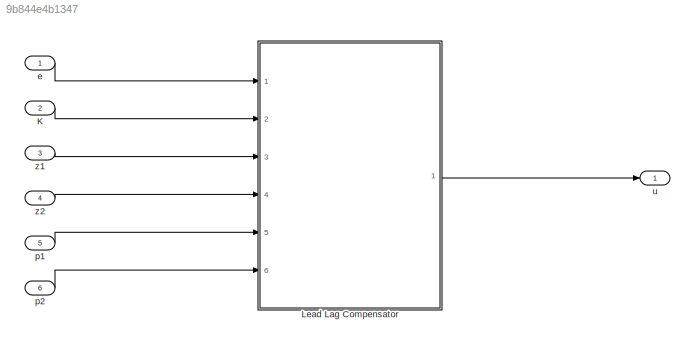
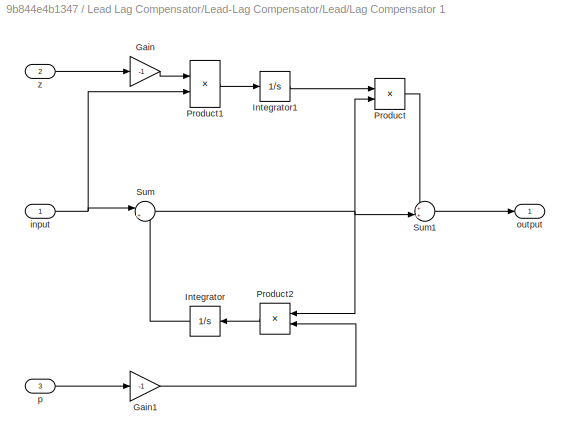
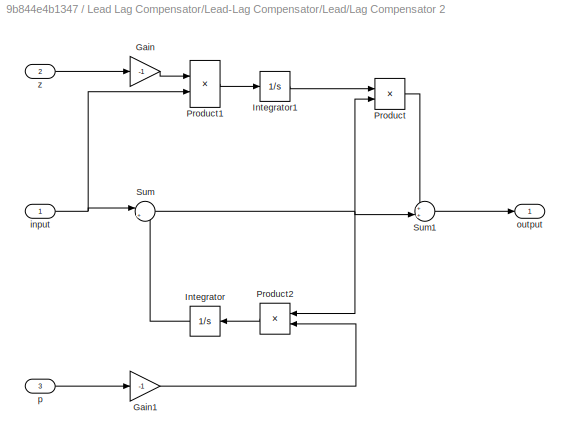
MODEL slx_9b844e4b1347
KIND model
CONFIG AbsTol = auto
CONFIG EnableMultiTasking = off
CONFIG FixedStep = auto
CONFIG MaxStep = auto
CONFIG MinStep = auto
CONFIG RelTol = 1e-3
CONFIG SampleTimeConstraint = Unconstrained
CONFIG Solver = VariableStepAuto
CONFIG SolverName = VariableStepAuto
CONFIG StartTime = 0.0
CONFIG StopTime = 10.0
BLOCK [Inport] K
  IconDisplay = Port number
  Port = 2
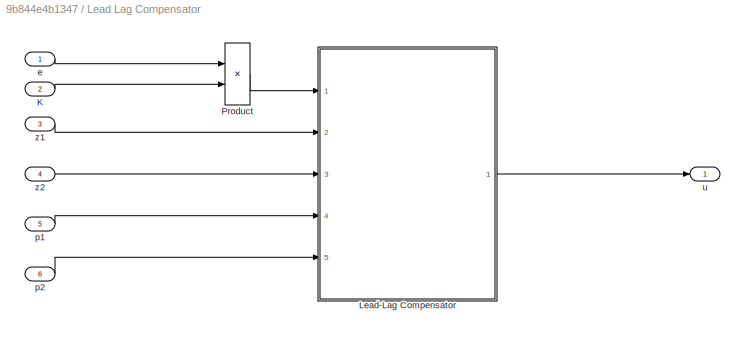
BLOCK [SubSystem] Lead Lag Compensator
  Ports = [6, 1]
  RequestExecContextInheritance = off
BLOCK [Inport] Lead Lag Compensator/K
  IconDisplay = Port number
  Port = 2
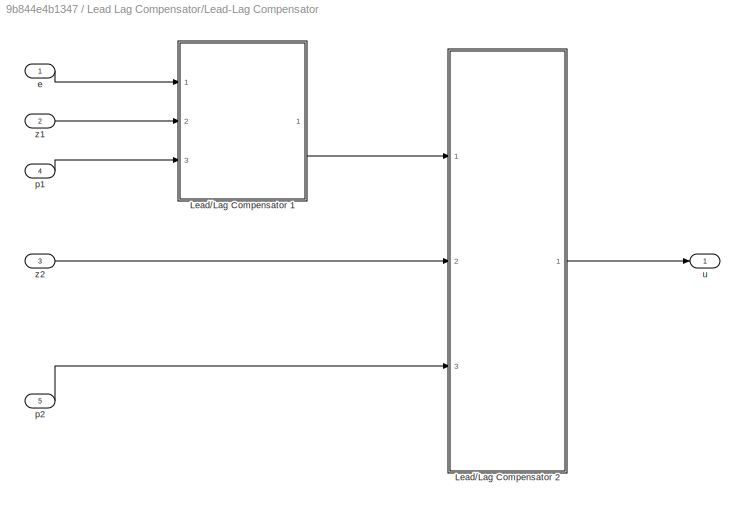
BLOCK [SubSystem] Lead Lag Compensator/Lead-Lag Compensator
  Ports = [5, 1]
  RequestExecContextInheritance = off
BLOCK [SubSystem] Lead Lag Compensator/Lead-Lag Compensator/Lead//Lag Compensator 1
  Ports = [3, 1]
  RequestExecContextInheritance = off
BLOCK [Gain] Lead Lag Compensator/Lead-Lag Compensator/Lead//Lag Compensator 1/Gain
  Gain = -1
  OutDataTypeStr = Inherit: Inherit via internal rule
  ParamDataTypeStr = Inherit: Inherit via internal rule
  SaturateOnIntegerOverflow = off
BLOCK [Gain] Lead Lag Compensator/Lead-Lag Compensator/Lead//Lag Compensator 1/Gain1
  Gain = -1
  OutDataTypeStr = Inherit: Inherit via internal rule
  ParamDataTypeStr = Inherit: Inherit via internal rule
  SaturateOnIntegerOverflow = off
BLOCK [Integrator] Lead Lag Compensator/Lead-Lag Compensator/Lead//Lag Compensator 1/Integrator
  Ports = [1, 1]
BLOCK [Integrator] Lead Lag Compensator/Lead-Lag Compensator/Lead//Lag Compensator 1/Integrator1
  Ports = [1, 1]
BLOCK [Product] Lead Lag Compensator/Lead-Lag Compensator/Lead//Lag Compensator 1/Product
  InputSameDT = off
  OutDataTypeStr = Inherit: Inherit via internal rule
  Ports = [2, 1]
  RndMeth = Floor
  SaturateOnIntegerOverflow = off
BLOCK [Product] Lead Lag Compensator/Lead-Lag Compensator/Lead//Lag Compensator 1/Product1
  InputSameDT = off
  OutDataTypeStr = Inherit: Inherit via internal rule
  Ports = [2, 1]
  RndMeth = Floor
  SaturateOnIntegerOverflow = off
BLOCK [Product] Lead Lag Compensator/Lead-Lag Compensator/Lead//Lag Compensator 1/Product2
  InputSameDT = off
  OutDataTypeStr = Inherit: Inherit via internal rule
  Ports = [2, 1]
  RndMeth = Floor
  SaturateOnIntegerOverflow = off
BLOCK [Sum] Lead Lag Compensator/Lead-Lag Compensator/Lead//Lag Compensator 1/Sum
  IconShape = round
  InputSameDT = off
  Inputs = |+-
  OutDataTypeStr = Inherit: Inherit via internal rule
  Ports = [2, 1]
  SaturateOnIntegerOverflow = off
BLOCK [Sum] Lead Lag Compensator/Lead-Lag Compensator/Lead//Lag Compensator 1/Sum1
  IconShape = round
  InputSameDT = off
  Inputs = ++|
  OutDataTypeStr = Inherit: Inherit via internal rule
  Ports = [2, 1]
  SaturateOnIntegerOverflow = off
BLOCK [Inport] Lead Lag Compensator/Lead-Lag Compensator/Lead//Lag Compensator 1/input
  IconDisplay = Port number
BLOCK [Outport] Lead Lag Compensator/Lead-Lag Compensator/Lead//Lag Compensator 1/output
  IconDisplay = Port number
BLOCK [Inport] Lead Lag Compensator/Lead-Lag Compensator/Lead//Lag Compensator 1/p
  IconDisplay = Port number
  Port = 3
BLOCK [Inport] Lead Lag Compensator/Lead-Lag Compensator/Lead//Lag Compensator 1/z
  IconDisplay = Port number
  Port = 2
BLOCK [SubSystem] Lead Lag Compensator/Lead-Lag Compensator/Lead//Lag Compensator 2
  Ports = [3, 1]
  RequestExecContextInheritance = off
BLOCK [Gain] Lead Lag Compensator/Lead-Lag Compensator/Lead//Lag Compensator 2/Gain
  Gain = -1
  OutDataTypeStr = Inherit: Inherit via internal rule
  ParamDataTypeStr = Inherit: Inherit via internal rule
  SaturateOnIntegerOverflow = off
BLOCK [Gain] Lead Lag Compensator/Lead-Lag Compensator/Lead//Lag Compensator 2/Gain1
  Gain = -1
  OutDataTypeStr = Inherit: Inherit via internal rule
  ParamDataTypeStr = Inherit: Inherit via internal rule
  SaturateOnIntegerOverflow = off
BLOCK [Integrator] Lead Lag Compensator/Lead-Lag Compensator/Lead//Lag Compensator 2/Integrator
  Ports = [1, 1]
BLOCK [Integrator] Lead Lag Compensator/Lead-Lag Compensator/Lead//Lag Compensator 2/Integrator1
  Ports = [1, 1]
BLOCK [Product] Lead Lag Compensator/Lead-Lag Compensator/Lead//Lag Compensator 2/Product
  InputSameDT = off
  OutDataTypeStr = Inherit: Inherit via internal rule
  Ports = [2, 1]
  RndMeth = Floor
  SaturateOnIntegerOverflow = off
BLOCK [Product] Lead Lag Compensator/Lead-Lag Compensator/Lead//Lag Compensator 2/Product1
  InputSameDT = off
  OutDataTypeStr = Inherit: Inherit via internal rule
  Ports = [2, 1]
  RndMeth = Floor
  SaturateOnIntegerOverflow = off
BLOCK [Product] Lead Lag Compensator/Lead-Lag Compensator/Lead//Lag Compensator 2/Product2
  InputSameDT = off
  OutDataTypeStr = Inherit: Inherit via internal rule
  Ports = [2, 1]
  RndMeth = Floor
  SaturateOnIntegerOverflow = off
BLOCK [Sum] Lead Lag Compensator/Lead-Lag Compensator/Lead//Lag Compensator 2/Sum
  IconShape = round
  InputSameDT = off
  Inputs = |+-
  OutDataTypeStr = Inherit: Inherit via internal rule
  Ports = [2, 1]
  SaturateOnIntegerOverflow = off
BLOCK [Sum] Lead Lag Compensator/Lead-Lag Compensator/Lead//Lag Compensator 2/Sum1
  IconShape = round
  InputSameDT = off
  Inputs = ++|
  OutDataTypeStr = Inherit: Inherit via internal rule
  Ports = [2, 1]
  SaturateOnIntegerOverflow = off
BLOCK [Inport] Lead Lag Compensator/Lead-Lag Compensator/Lead//Lag Compensator 2/input
  IconDisplay = Port number
BLOCK [Outport] Lead Lag Compensator/Lead-Lag Compensator/Lead//Lag Compensator 2/output
  IconDisplay = Port number
BLOCK [Inport] Lead Lag Compensator/Lead-Lag Compensator/Lead//Lag Compensator 2/p
  IconDisplay = Port number
  Port = 3
BLOCK [Inport] Lead Lag Compensator/Lead-Lag Compensator/Lead//Lag Compensator 2/z
  IconDisplay = Port number
  Port = 2
BLOCK [Inport] Lead Lag Compensator/Lead-Lag Compensator/e
  IconDisplay = Port number
BLOCK [Inport] Lead Lag Compensator/Lead-Lag Compensator/p1
  IconDisplay = Port number
  Port = 4
BLOCK [Inport] Lead Lag Compensator/Lead-Lag Compensator/p2
  IconDisplay = Port number
  Port = 5
BLOCK [Outport] Lead Lag Compensator/Lead-Lag Compensator/u
  IconDisplay = Port number
BLOCK [Inport] Lead Lag Compensator/Lead-Lag Compensator/z1
  IconDisplay = Port number
  Port = 2
BLOCK [Inport] Lead Lag Compensator/Lead-Lag Compensator/z2
  IconDisplay = Port number
  Port = 3
BLOCK [Product] Lead Lag Compensator/Product
  InputSameDT = off
  OutDataTypeStr = Inherit: Inherit via internal rule
  Ports = [2, 1]
  RndMeth = Floor
  SaturateOnIntegerOverflow = off
BLOCK [Inport] Lead Lag Compensator/e
  IconDisplay = Port number
BLOCK [Inport] Lead Lag Compensator/p1
  IconDisplay = Port number
  Port = 5
BLOCK [Inport] Lead Lag Compensator/p2
  IconDisplay = Port number
  Port = 6
BLOCK [Outport] Lead Lag Compensator/u
  IconDisplay = Port number
BLOCK [Inport] Lead Lag Compensator/z1
  IconDisplay = Port number
  Port = 3
BLOCK [Inport] Lead Lag Compensator/z2
  IconDisplay = Port number
  Port = 4
BLOCK [Inport] e
  IconDisplay = Port number
BLOCK [Inport] p1
  IconDisplay = Port number
  Port = 5
BLOCK [Inport] p2
  IconDisplay = Port number
  Port = 6
BLOCK [Outport] u
  IconDisplay = Port number
BLOCK [Inport] z1
  IconDisplay = Port number
  Port = 3
BLOCK [Inport] z2
  IconDisplay = Port number
  Port = 4
LINE K:1 -> Lead Lag Compensator:2
LINE Lead Lag Compensator/K:1 -> Lead Lag Compensator/Product:2
LINE Lead Lag Compensator/Lead-Lag Compensator/Lead//Lag Compensator 1/Gain1:1 -> Lead Lag Compensator/Lead-Lag Compensator/Lead//Lag Compensator 1/Product2:2
LINE Lead Lag Compensator/Lead-Lag Compensator/Lead//Lag Compensator 1/Gain:1 -> Lead Lag Compensator/Lead-Lag Compensator/Lead//Lag Compensator 1/Product1:1
LINE Lead Lag Compensator/Lead-Lag Compensator/Lead//Lag Compensator 1/Integrator1:1 -> Lead Lag Compensator/Lead-Lag Compensator/Lead//Lag Compensator 1/Product:1
LINE Lead Lag Compensator/Lead-Lag Compensator/Lead//Lag Compensator 1/Integrator:1 -> Lead Lag Compensator/Lead-Lag Compensator/Lead//Lag Compensator 1/Sum:2
LINE Lead Lag Compensator/Lead-Lag Compensator/Lead//Lag Compensator 1/Product1:1 -> Lead Lag Compensator/Lead-Lag Compensator/Lead//Lag Compensator 1/Integrator1:1
LINE Lead Lag Compensator/Lead-Lag Compensator/Lead//Lag Compensator 1/Product2:1 -> Lead Lag Compensator/Lead-Lag Compensator/Lead//Lag Compensator 1/Integrator:1
LINE Lead Lag Compensator/Lead-Lag Compensator/Lead//Lag Compensator 1/Product:1 -> Lead Lag Compensator/Lead-Lag Compensator/Lead//Lag Compensator 1/Sum1:1
LINE Lead Lag Compensator/Lead-Lag Compensator/Lead//Lag Compensator 1/Sum1:1 -> Lead Lag Compensator/Lead-Lag Compensator/Lead//Lag Compensator 1/output:1
NET Lead Lag Compensator/Lead-Lag Compensator/Lead//Lag Compensator 1/Sum:1 -> Lead Lag Compensator/Lead-Lag Compensator/Lead//Lag Compensator 1/Product2:1, Lead Lag Compensator/Lead-Lag Compensator/Lead//Lag Compensator 1/Product:2, Lead Lag Compensator/Lead-Lag Compensator/Lead//Lag Compensator 1/Sum1:2
NET Lead Lag Compensator/Lead-Lag Compensator/Lead//Lag Compensator 1/input:1 -> Lead Lag Compensator/Lead-Lag Compensator/Lead//Lag Compensator 1/Product1:2, Lead Lag Compensator/Lead-Lag Compensator/Lead//Lag Compensator 1/Sum:1
LINE Lead Lag Compensator/Lead-Lag Compensator/Lead//Lag Compensator 1/p:1 -> Lead Lag Compensator/Lead-Lag Compensator/Lead//Lag Compensator 1/Gain1:1
LINE Lead Lag Compensator/Lead-Lag Compensator/Lead//Lag Compensator 1/z:1 -> Lead Lag Compensator/Lead-Lag Compensator/Lead//Lag Compensator 1/Gain:1
LINE Lead Lag Compensator/Lead-Lag Compensator/Lead//Lag Compensator 1:1 -> Lead Lag Compensator/Lead-Lag Compensator/Lead//Lag Compensator 2:1
LINE Lead Lag Compensator/Lead-Lag Compensator/Lead//Lag Compensator 2/Gain1:1 -> Lead Lag Compensator/Lead-Lag Compensator/Lead//Lag Compensator 2/Product2:2
LINE Lead Lag Compensator/Lead-Lag Compensator/Lead//Lag Compensator 2/Gain:1 -> Lead Lag Compensator/Lead-Lag Compensator/Lead//Lag Compensator 2/Product1:1
LINE Lead Lag Compensator/Lead-Lag Compensator/Lead//Lag Compensator 2/Integrator1:1 -> Lead Lag Compensator/Lead-Lag Compensator/Lead//Lag Compensator 2/Product:1
LINE Lead Lag Compensator/Lead-Lag Compensator/Lead//Lag Compensator 2/Integrator:1 -> Lead Lag Compensator/Lead-Lag Compensator/Lead//Lag Compensator 2/Sum:2
LINE Lead Lag Compensator/Lead-Lag Compensator/Lead//Lag Compensator 2/Product1:1 -> Lead Lag Compensator/Lead-Lag Compensator/Lead//Lag Compensator 2/Integrator1:1
LINE Lead Lag Compensator/Lead-Lag Compensator/Lead//Lag Compensator 2/Product2:1 -> Lead Lag Compensator/Lead-Lag Compensator/Lead//Lag Compensator 2/Integrator:1
LINE Lead Lag Compensator/Lead-Lag Compensator/Lead//Lag Compensator 2/Product:1 -> Lead Lag Compensator/Lead-Lag Compensator/Lead//Lag Compensator 2/Sum1:1
LINE Lead Lag Compensator/Lead-Lag Compensator/Lead//Lag Compensator 2/Sum1:1 -> Lead Lag Compensator/Lead-Lag Compensator/Lead//Lag Compensator 2/output:1
NET Lead Lag Compensator/Lead-Lag Compensator/Lead//Lag Compensator 2/Sum:1 -> Lead Lag Compensator/Lead-Lag Compensator/Lead//Lag Compensator 2/Product2:1, Lead Lag Compensator/Lead-Lag Compensator/Lead//Lag Compensator 2/Product:2, Lead Lag Compensator/Lead-Lag Compensator/Lead//Lag Compensator 2/Sum1:2
NET Lead Lag Compensator/Lead-Lag Compensator/Lead//Lag Compensator 2/input:1 -> Lead Lag Compensator/Lead-Lag Compensator/Lead//Lag Compensator 2/Product1:2, Lead Lag Compensator/Lead-Lag Compensator/Lead//Lag Compensator 2/Sum:1
LINE Lead Lag Compensator/Lead-Lag Compensator/Lead//Lag Compensator 2/p:1 -> Lead Lag Compensator/Lead-Lag Compensator/Lead//Lag Compensator 2/Gain1:1
LINE Lead Lag Compensator/Lead-Lag Compensator/Lead//Lag Compensator 2/z:1 -> Lead Lag Compensator/Lead-Lag Compensator/Lead//Lag Compensator 2/Gain:1
LINE Lead Lag Compensator/Lead-Lag Compensator/Lead//Lag Compensator 2:1 -> Lead Lag Compensator/Lead-Lag Compensator/u:1
LINE Lead Lag Compensator/Lead-Lag Compensator/e:1 -> Lead Lag Compensator/Lead-Lag Compensator/Lead//Lag Compensator 1:1
LINE Lead Lag Compensator/Lead-Lag Compensator/p1:1 -> Lead Lag Compensator/Lead-Lag Compensator/Lead//Lag Compensator 1:3
LINE Lead Lag Compensator/Lead-Lag Compensator/p2:1 -> Lead Lag Compensator/Lead-Lag Compensator/Lead//Lag Compensator 2:3
LINE Lead Lag Compensator/Lead-Lag Compensator/z1:1 -> Lead Lag Compensator/Lead-Lag Compensator/Lead//Lag Compensator 1:2
LINE Lead Lag Compensator/Lead-Lag Compensator/z2:1 -> Lead Lag Compensator/Lead-Lag Compensator/Lead//Lag Compensator 2:2
LINE Lead Lag Compensator/Lead-Lag Compensator:1 -> Lead Lag Compensator/u:1
LINE Lead Lag Compensator/Product:1 -> Lead Lag Compensator/Lead-Lag Compensator:1
LINE Lead Lag Compensator/e:1 -> Lead Lag Compensator/Product:1
LINE Lead Lag Compensator/p1:1 -> Lead Lag Compensator/Lead-Lag Compensator:4
LINE Lead Lag Compensator/p2:1 -> Lead Lag Compensator/Lead-Lag Compensator:5
LINE Lead Lag Compensator/z1:1 -> Lead Lag Compensator/Lead-Lag Compensator:2
LINE Lead Lag Compensator/z2:1 -> Lead Lag Compensator/Lead-Lag Compensator:3
LINE Lead Lag Compensator:1 -> u:1
LINE e:1 -> Lead Lag Compensator:1
LINE p1:1 -> Lead Lag Compensator:5
LINE p2:1 -> Lead Lag Compensator:6
LINE z1:1 -> Lead Lag Compensator:3
LINE z2:1 -> Lead Lag Compensator:4
note: NET lines group one-source signal fan-out (src -> all destinations, sorted); 1:1 wires keep LINE
